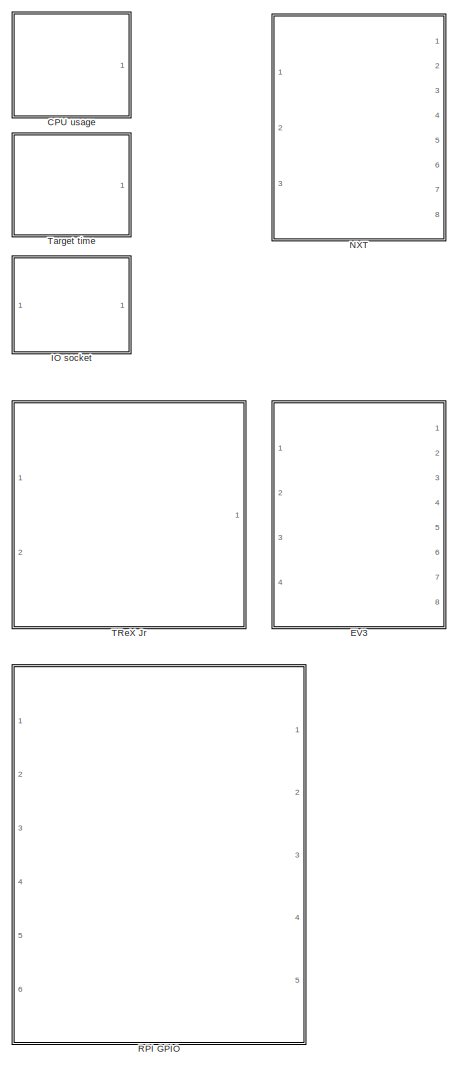
[diagram: root canvas - part 1/2, left side, full height]
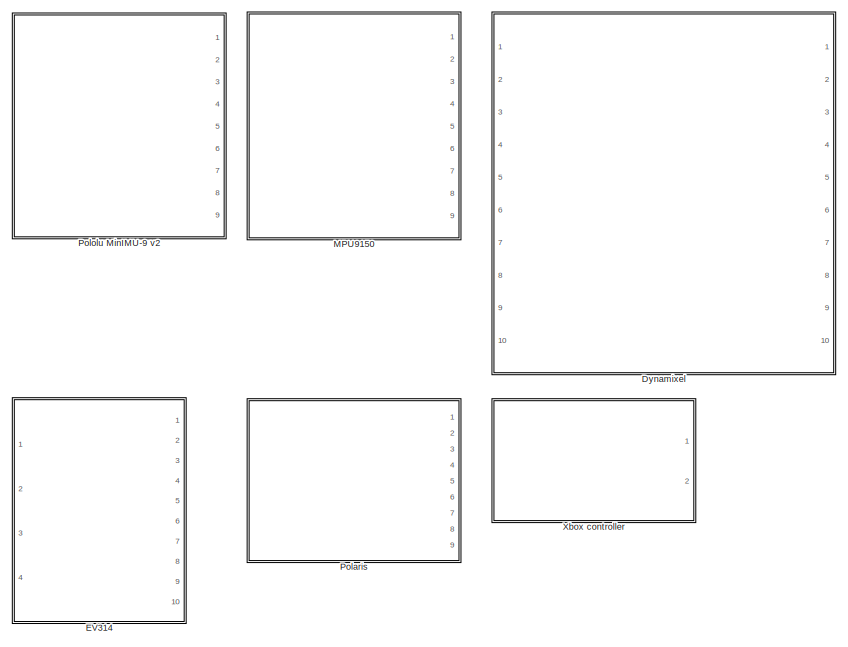
[diagram: root canvas - part 2/2, top right region]
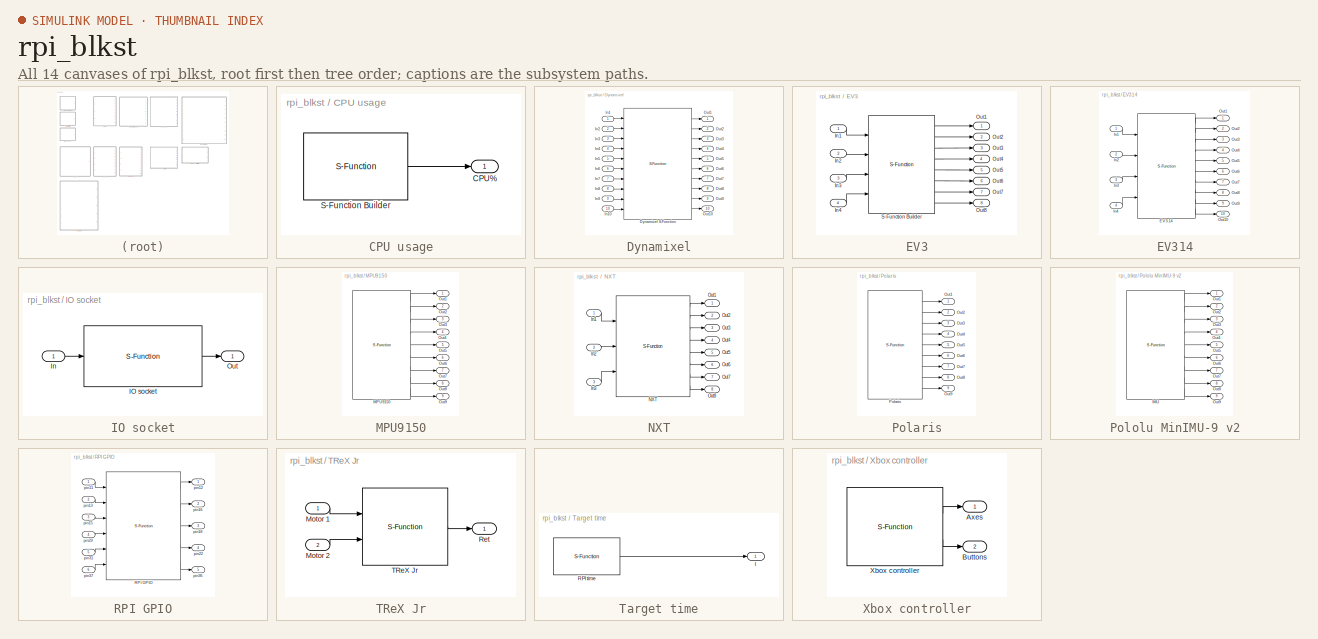
[diagram: thumbnail index - all 14 canvases of the model, root first then tree order]
MODEL rpi_blkst
KIND library
BLOCK [SubSystem] CPU usage
  FunctionWithSeparateData = off
  MaskDescription = Percentage of CPU usage on the target. To be safe, keep below 80%.
  MaskDisplay = image(imread('cpu_usage.jpg'))
  MaskEnableString = on
  MaskHelp = Time spent in the system computation with respect to the period duration.
  MaskHideContents = off
  MaskIconFrame = on
  MaskIconOpaque = on
  MaskIconRotate = none
  MaskIconUnits = autoscale
  MaskPortRotate = default
  MaskPromptString = Sampling interval (s)
  MaskStyleString = edit
  MaskToolTipString = on
  MaskTunableValueString = off
  MaskType = Target CPU usage
  MaskValueString = 0.01
  MaskVariables = rpi_mask_Ts=@1;
  MaskVisibilityString = on
  MinAlgLoopOccurrences = off
  Opaque = off
  Ports = [0, 1]
  PropExecContextOutsideSubsystem = off
  RTWSystemCode = Auto
  RequestExecContextInheritance = off
  SID = 84
BLOCK [Outport] CPU usage/CPU%
  IconDisplay = Port number
  SID = 86
BLOCK [S-Function] CPU usage/S-Function Builder
  EnableBusSupport = off
  FunctionName = rpi_sfun_cpu
  InitFcn = try, set_param(gcb,'FunctionName','rpi_sfun_cpu'), end
  MaskCapabilities = slmaskedcaps(gcbh)
  MaskDescription = The S-Function Builder block creates a wrapper C-MEX S-function from your supplied C code with multiple input ports, output ports, and a variable number of scalar, vector, or matrix parameters.  The input and output ports can propagate Simulink built-in data types, fixed-point datatypes, complex, frame, 1-D, and 2-D signals.  This block also supports discrete and continuous states of type real.  Y...<+108ch>  <repeated x13 — deduplicated; at blocks: S-Function Builder, Dynamixel S-Function, EV3.14, IO socket, MPU9150, NXT, Polaris, IMU, RPI GPIO, TReX Jr, RPI time, Xbox controller>
  MaskDisplay = plot(val(:,1),val(:,2)),disp(sys), port_label('output',1,'y0')
  MaskIconFrame = on
  MaskIconOpaque = on
  MaskIconRotate = none
  MaskIconUnits = normalized
  MaskInitialization = val = [[.9  0.75 0.75 1 1 .9 .9 1]',[1 1 0.75 0.75 .9 .9 1 .9]'];try , sys = get_param(gcb,'SfunBuilderFcnName');if isempty(sys), sys = get_param(gcb,'FunctionName'); end,catch, sys = get_param(gcb,'FunctionName'); end  <repeated x13 — deduplicated; at blocks: S-Function Builder, Dynamixel S-Function, EV3.14, IO socket, MPU9150, NXT, Polaris, IMU, RPI GPIO, TReX Jr, RPI time, Xbox controller>
  MaskPortRotate = default
  MaskType = S-Function Builder
  OpenFcn = sfunctionwizard(gcbh)
  Parameters = rpi_mask_Ts
  Ports = [0, 1]
  PreSaveFcn = try, set_param(gcb,'FunctionName','rpi_sfun_cpu'), end
  SFunctionModules = rpi_sfun_cpu_wrapper
  SID = 85
  WizardData = DataTag0
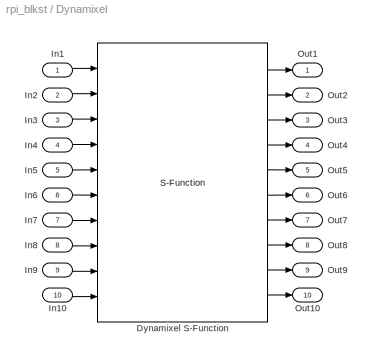
BLOCK [SubSystem] Dynamixel
  FunctionWithSeparateData = off
  MaskCallbackString = ||||||||||||||||||||||||||||||||||||||||
  MaskDescription = Control all Dynamixel actuators with Simulink coder.
  MaskDisplay = image(imread('dynamixel.jpg'))\nport_label('input',1,'u1')\nport_label('input',2,'u2')\nport_label('input',3,'u3')\nport_label('input',4,'u4')\nport_label('input',5,'u5')\nport_label('input',6,'u6')\nport_label('input',7,'u7')\nport_label('input',8,'u8')\nport_label('input',9,'u9')\nport_label('input',10,'u10')\nport_label('output',1,'y1')\nport_label('output',2,'y2')\nport_label('output',3,'y3')\...<+204ch>
  MaskEnableString = on,on,on,on,on,on,on,on,on,on,on,on,on,on,on,on,on,on,on,on,on,on,on,on,on,on,on,on,on,on,on,on,on,on,on,on,on,on,on,on,on
  MaskHelp = Sampling interval: should be greater than 5ms.\nPortname: 0-9:/dev/ttyUSB0-/dev/ttyUSB9, 10-19:/dev/ttyS0-/dev/ttyS9.\nBaudrate: the speed of the serial communication (ex: 57600).\nStartID: the ID of the first device that should be accessed.\nNBID: number of devices that should be addressed by this block (max 10).\nProtocol: version of the communication protocol (1 or 2).\nInput write address: reg...<+830ch>
  MaskHideContents = off
  MaskIconFrame = on
  MaskIconOpaque = on
  MaskIconRotate = none
  MaskIconUnits = autoscale
  MaskPortRotate = default
  MaskPromptString = Sampling interval (s)|Serial port number|Baud rate (bps)|ID of the first device|Number of devices|Protocol version|Input write address|Input write length|Output read address|Output read length|Output read sign|Address of instruction 1|Length of instruction 1|Data of instruction 1|Address of instruction 2|Length of instruction 2|Data of instruction 2|Address of instruction 3|Length of instruction 3...<+519ch>
  MaskStyleString = edit,edit,edit,edit,edit,edit,edit,edit,edit,edit,edit,edit,edit,edit,edit,edit,edit,edit,edit,edit,edit,edit,edit,edit,edit,edit,edit,edit,edit,edit,edit,edit,edit,edit,edit,edit,edit,edit,edit,edit,edit
  MaskTabNameString = General,General,General,General,General,General,I/O,I/O,I/O,I/O,I/O,Initialization,Initialization,Initialization,Initialization,Initialization,Initialization,Initialization,Initialization,Initialization,Initialization,Initialization,Initialization,Initialization,Initialization,Initialization,Initialization,Initialization,Initialization,Initialization,Initialization,Initialization,Initialization,In...<+81ch>
  MaskToolTipString = on,on,on,on,on,on,on,on,on,on,on,on,on,on,on,on,on,on,on,on,on,on,on,on,on,on,on,on,on,on,on,on,on,on,on,on,on,on,on,on,on
  MaskTunableValueString = off,off,off,off,off,off,off,off,off,off,off,off,off,off,off,off,off,off,off,off,off,off,off,off,off,off,off,off,off,off,off,off,off,off,off,off,off,off,off,off,off
  MaskType = Dynamixel actuator
  MaskValueString = 0.005|0|1000000|1|1|2|0|0|0|0|0|0|0|0|0|0|0|0|0|0|0|0|0|0|0|0|0|0|0|0|0|0|0|0|0|0|0|0|0|0|0
  MaskVariables = rpi_mask_Ts=@1;rpi_mask_portname=@2;rpi_mask_baudrate=@3;rpi_mask_startid=@4;rpi_mask_nbid=@5;rpi_mask_proto=@6;rpi_mask_write_addr=@7;rpi_mask_write_length=@8;rpi_mask_read_addr=@9;rpi_mask_read_length=@10;rpi_mask_read_sign=@11;rpi_mask_init1_addr=@12;rpi_mask_init1_length=@13;rpi_mask_init1_data=@14;rpi_mask_init2_addr=@15;rpi_mask_init2_length=@16;rpi_mask_init2_data=@17;rpi_mask_init3_addr=@1...<+570ch>
  MaskVisibilityString = on,on,on,on,on,on,on,on,on,on,on,on,on,on,on,on,on,on,on,on,on,on,on,on,on,on,on,on,on,on,on,on,on,on,on,on,on,on,on,on,on
  MinAlgLoopOccurrences = off
  Opaque = off
  Ports = [10, 10]
  PropExecContextOutsideSubsystem = off
  RTWSystemCode = Auto
  RequestExecContextInheritance = off
  SID = 117
BLOCK [S-Function] Dynamixel/Dynamixel S-Function
  EnableBusSupport = off
  FunctionName = rpi_sfun_dxl
  InitFcn = try, set_param(gcb,'FunctionName','rpi_sfun_dxl'), end
  MaskCapabilities = slmaskedcaps(gcbh)
  MaskDisplay = plot(val(:,1),val(:,2)),disp(sys), port_label('input',1,'u1'), port_label('input',2,'u2'), port_label('input',3,'u3'), port_label('input',4,'u4'), port_label('input',5,'u5'), port_label('input',6,'u6'), port_label('input',7,'u7'), port_label('input',8,'u8'), port_label('input',9,'u9'), port_label('input',10,'u10'), port_label('output',1,'y1'), port_label('output',2,'y2'), port_label('output',3,'y3...<+207ch>
  MaskIconFrame = on
  MaskIconOpaque = on
  MaskIconRotate = none
  MaskIconUnits = normalized
  MaskPortRotate = default
  MaskType = S-Function Builder
  OpenFcn = sfunctionwizard(gcbh)
  Parameters = rpi_mask_Ts,uint8(rpi_mask_portname),uint32(rpi_mask_baudrate),uint8(rpi_mask_startid),uint8(rpi_mask_nbid),uint8(rpi_mask_proto),uint16(rpi_mask_write_addr),uint8(rpi_mask_write_length),uint16(rpi_mask_read_addr),uint8(rpi_mask_read_length),uint8(rpi_mask_read_sign),uint16(rpi_mask_init1_addr),uint8(rpi_mask_init1_length),rpi_mask_init1_data,uint16(rpi_mask_init2_addr),uint8(rpi_mask_init2_length...<+637ch>
  Ports = [10, 10]
  PreSaveFcn = try, set_param(gcb,'FunctionName','rpi_sfun_dxl'), end
  SFunctionModules = rpi_sfun_dxl_wrapper
  SID = 128
  WizardData = DataTag1
BLOCK [Inport] Dynamixel/In1
  IconDisplay = Port number
  SID = 118
BLOCK [Inport] Dynamixel/In10
  IconDisplay = Port number
  Port = 10
  SID = 127
BLOCK [Inport] Dynamixel/In2
  IconDisplay = Port number
  Port = 2
  SID = 119
BLOCK [Inport] Dynamixel/In3
  IconDisplay = Port number
  Port = 3
  SID = 120
BLOCK [Inport] Dynamixel/In4
  IconDisplay = Port number
  Port = 4
  SID = 121
BLOCK [Inport] Dynamixel/In5
  IconDisplay = Port number
  Port = 5
  SID = 122
BLOCK [Inport] Dynamixel/In6
  IconDisplay = Port number
  Port = 6
  SID = 123
BLOCK [Inport] Dynamixel/In7
  IconDisplay = Port number
  Port = 7
  SID = 124
BLOCK [Inport] Dynamixel/In8
  IconDisplay = Port number
  Port = 8
  SID = 125
BLOCK [Inport] Dynamixel/In9
  IconDisplay = Port number
  Port = 9
  SID = 126
BLOCK [Outport] Dynamixel/Out1
  IconDisplay = Port number
  SID = 129
BLOCK [Outport] Dynamixel/Out10
  IconDisplay = Port number
  Port = 10
  SID = 138
BLOCK [Outport] Dynamixel/Out2
  IconDisplay = Port number
  Port = 2
  SID = 130
BLOCK [Outport] Dynamixel/Out3
  IconDisplay = Port number
  Port = 3
  SID = 131
BLOCK [Outport] Dynamixel/Out4
  IconDisplay = Port number
  Port = 4
  SID = 132
BLOCK [Outport] Dynamixel/Out5
  IconDisplay = Port number
  Port = 5
  SID = 133
BLOCK [Outport] Dynamixel/Out6
  IconDisplay = Port number
  Port = 6
  SID = 134
BLOCK [Outport] Dynamixel/Out7
  IconDisplay = Port number
  Port = 7
  SID = 135
BLOCK [Outport] Dynamixel/Out8
  IconDisplay = Port number
  Port = 8
  SID = 136
BLOCK [Outport] Dynamixel/Out9
  IconDisplay = Port number
  Port = 9
  SID = 137
BLOCK [SubSystem] EV3
  FunctionWithSeparateData = off
  MaskDescription = LEGO EV3 communication block.
  MaskDisplay = image(imread('ev3.jpg'))\nport_label('input',1,'A')\nport_label('input',2,'B')\nport_label('input',3,'C')\nport_label('input',4,'D')\nport_label('output',1,'A')\nport_label('output',2,'B')\nport_label('output',3,'C')\nport_label('output',4,'D')\nport_label('output',5,'1')\nport_label('output',6,'2')\nport_label('output',7,'3')\nport_label('output',8,'4')
  MaskEnableString = on
  MaskHelp = Communicates through USB with the Lego EV3 virtual machine.
  MaskHideContents = off
  MaskIconFrame = on
  MaskIconOpaque = on
  MaskIconRotate = none
  MaskIconUnits = normalized
  MaskPortRotate = default
  MaskPromptString = Sampling interval (s)
  MaskStyleString = edit
  MaskToolTipString = on
  MaskTunableValueString = off
  MaskType = LEGO EV3
  MaskValueString = 0.01
  MaskVariables = rpi_mask_Ts=@1;
  MaskVisibilityString = on
  MinAlgLoopOccurrences = off
  Opaque = off
  Ports = [4, 8]
  PropExecContextOutsideSubsystem = off
  RTWSystemCode = Auto
  RequestExecContextInheritance = off
  SID = 8
BLOCK [Inport] EV3/In1
  IconDisplay = Port number
  SID = 9
BLOCK [Inport] EV3/In2
  IconDisplay = Port number
  Port = 2
  SID = 10
BLOCK [Inport] EV3/In3
  IconDisplay = Port number
  Port = 3
  SID = 11
BLOCK [Inport] EV3/In4
  IconDisplay = Port number
  Port = 4
  SID = 12
BLOCK [Outport] EV3/Out1
  IconDisplay = Port number
  SID = 18
BLOCK [Outport] EV3/Out2
  IconDisplay = Port number
  Port = 2
  SID = 19
BLOCK [Outport] EV3/Out3
  IconDisplay = Port number
  Port = 3
  SID = 20
BLOCK [Outport] EV3/Out4
  IconDisplay = Port number
  Port = 4
  SID = 21
BLOCK [Outport] EV3/Out5
  IconDisplay = Port number
  Port = 5
  SID = 22
BLOCK [Outport] EV3/Out6
  IconDisplay = Port number
  Port = 6
  SID = 23
BLOCK [Outport] EV3/Out7
  IconDisplay = Port number
  Port = 7
  SID = 24
BLOCK [Outport] EV3/Out8
  IconDisplay = Port number
  Port = 8
  SID = 25
BLOCK [S-Function] EV3/S-Function Builder
  EnableBusSupport = off
  FunctionName = rpi_sfun_ev3
  InitFcn = try, set_param(gcb,'FunctionName','rpi_sfun_ev3'), end
  MaskCapabilities = slmaskedcaps(gcbh)
  MaskDisplay = plot(val(:,1),val(:,2)),disp(sys), port_label('input',1,'u_A'), port_label('input',2,'u_B'), port_label('input',3,'u_C'), port_label('input',4,'u_D'), port_label('output',1,'y_A'), port_label('output',2,'y_B'), port_label('output',3,'y_C'), port_label('output',4,'y_D'), port_label('output',5,'y_1'), port_label('output',6,'y_2'), port_label('output',7,'y_3'), port_label('output',8,'y_4')
  MaskIconFrame = on
  MaskIconOpaque = on
  MaskIconRotate = none
  MaskIconUnits = normalized
  MaskPortRotate = default
  MaskType = S-Function Builder
  OpenFcn = sfunctionwizard(gcbh)
  Parameters = rpi_mask_Ts
  Ports = [4, 8]
  PreSaveFcn = try, set_param(gcb,'FunctionName','rpi_sfun_ev3'), end
  SFunctionModules = rpi_sfun_ev3_wrapper
  SID = 13
  WizardData = DataTag2
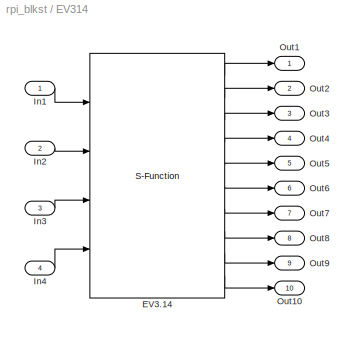
BLOCK [SubSystem] EV314
  FunctionWithSeparateData = off
  MaskCallbackString = |
  MaskDescription = Controlling an EV3 running the EV3.14 firmware through USB.\n\n
  MaskDisplay = image(imread('ev3.14.jpg'))\nport_label('input',1,'UA')\nport_label('input',2,'UB')\nport_label('input',3,'UC')\nport_label('input',4,'UD')\nport_label('output',1,'EA')\nport_label('output',2,'EB')\nport_label('output',3,'EC')\nport_label('output',4,'ED')\nport_label('output',5,'S1')\nport_label('output',6,'S2')\nport_label('output',7,'S3')\nport_label('output',8,'S4')\nport_label('output',9,'IBAT...<+34ch>
  MaskEnableString = on,on
  MaskHelp = UA, UB, UC, UD are the motor voltage control signals ranging from -10000 to +10000.\n\nEA, EB, EC, ED are the encoder values. EV3.14 counts in quad-precision. Thus there is 720 increments per turn. \n\nS1, S2, S3, S4 are the voltage measured at the sensor inputs. Only analog sensors are supported.\n\nIBAT gives the battery current in mA.\n\nVBAT gives the battery voltage in mV. Note that the brick...<+259ch>
  MaskHideContents = off
  MaskIconFrame = on
  MaskIconOpaque = on
  MaskIconRotate = none
  MaskIconUnits = autoscale
  MaskPortRotate = default
  MaskPromptString = EV3.14 block ID|Sampling interval (s)
  MaskStyleString = edit,edit
  MaskToolTipString = on,on
  MaskTunableValueString = off,off
  MaskType = EV3.14 interface
  MaskValueString = 0|0.01
  MaskVariables = rpi_mask_ID=@1;rpi_mask_Ts=@2;
  MaskVisibilityString = on,on
  MinAlgLoopOccurrences = off
  Opaque = off
  Ports = [4, 10]
  PropExecContextOutsideSubsystem = off
  RTWSystemCode = Auto
  RequestExecContextInheritance = off
  SID = 87
BLOCK [S-Function] EV314/EV3.14
  EnableBusSupport = off
  FunctionName = rpi_sfun_ev314
  InitFcn = try, set_param(gcb,'FunctionName','rpi_sfun_ev314'), end
  MaskCapabilities = slmaskedcaps(gcbh)
  MaskDisplay = plot(val(:,1),val(:,2)),disp(sys), port_label('input',1,'UA'), port_label('input',2,'UB'), port_label('input',3,'UC'), port_label('input',4,'UD'), port_label('output',1,'EA'), port_label('output',2,'EB'), port_label('output',3,'EC'), port_label('output',4,'ED'), port_label('output',5,'S1'), port_label('output',6,'S2'), port_label('output',7,'S3'), port_label('output',8,'S4'), port_label('output',9...<+40ch>
  MaskIconFrame = on
  MaskIconOpaque = on
  MaskIconRotate = none
  MaskIconUnits = normalized
  MaskPortRotate = default
  MaskType = S-Function Builder
  OpenFcn = sfunctionwizard(gcbh)
  Parameters = rpi_mask_Ts,uint8(rpi_mask_ID)
  Ports = [4, 10]
  PreSaveFcn = try, set_param(gcb,'FunctionName','rpi_sfun_ev314'), end
  SFunctionModules = rpi_sfun_ev314_wrapper
  SID = 92
  WizardData = DataTag3
BLOCK [Inport] EV314/In1
  IconDisplay = Port number
  SID = 88
BLOCK [Inport] EV314/In2
  IconDisplay = Port number
  Port = 2
  SID = 89
BLOCK [Inport] EV314/In3
  IconDisplay = Port number
  Port = 3
  SID = 90
BLOCK [Inport] EV314/In4
  IconDisplay = Port number
  Port = 4
  SID = 91
BLOCK [Outport] EV314/Out1
  IconDisplay = Port number
  SID = 93
BLOCK [Outport] EV314/Out10
  IconDisplay = Port number
  Port = 10
  SID = 102
BLOCK [Outport] EV314/Out2
  IconDisplay = Port number
  Port = 2
  SID = 94
BLOCK [Outport] EV314/Out3
  IconDisplay = Port number
  Port = 3
  SID = 95
BLOCK [Outport] EV314/Out4
  IconDisplay = Port number
  Port = 4
  SID = 96
BLOCK [Outport] EV314/Out5
  IconDisplay = Port number
  Port = 5
  SID = 97
BLOCK [Outport] EV314/Out6
  IconDisplay = Port number
  Port = 6
  SID = 98
BLOCK [Outport] EV314/Out7
  IconDisplay = Port number
  Port = 7
  SID = 99
BLOCK [Outport] EV314/Out8
  IconDisplay = Port number
  Port = 8
  SID = 100
BLOCK [Outport] EV314/Out9
  IconDisplay = Port number
  Port = 9
  SID = 101
BLOCK [SubSystem] IO socket
  FunctionWithSeparateData = off
  MaskCallbackString = ||||
  MaskDescription = Input / Output socket
  MaskDisplay = image(imread('socket2.jpg'))
  MaskEnableString = on,on,on,on,on
  MaskHelp = Enables a bidirectional communication with other machines using UDP sockets.\n\nIP adress of the server is IP1.IP2.IP3.IP4.\n\nMultiple IO socket blocks (max 10) can be used simultaneously with different IP addresses.\n\nAn example of server code can be found in \"res/rpit_socket_server.c\".\n\nMinimum sampling period is 1ms.
  MaskHideContents = off
  MaskIconFrame = on
  MaskIconOpaque = on
  MaskIconRotate = none
  MaskIconUnits = autoscale
  MaskPortRotate = default
  MaskPromptString = Sampling interval (s)|IP1|IP2|IP3|IP4
  MaskStyleString = edit,edit,edit,edit,edit
  MaskToolTipString = on,on,on,on,on
  MaskTunableValueString = off,off,off,off,off
  MaskType = IO socket
  MaskValueString = 0.01|127|0|0|1
  MaskVariables = rpi_mask_Ts=@1;rpi_mask_ip1=@2;rpi_mask_ip2=@3;rpi_mask_ip3=@4;rpi_mask_ip4=@5;
  MaskVisibilityString = on,on,on,on,on
  MinAlgLoopOccurrences = off
  Opaque = off
  Ports = [1, 1]
  PropExecContextOutsideSubsystem = off
  RTWSystemCode = Auto
  RequestExecContextInheritance = off
  SID = 143
BLOCK [S-Function] IO socket/IO socket
  EnableBusSupport = off
  FunctionName = rpi_sfun_iosocket
  InitFcn = try, set_param(gcb,'FunctionName','rpi_sfun_iosocket'), end
  MaskCapabilities = slmaskedcaps(gcbh)
  MaskDisplay = plot(val(:,1),val(:,2)),disp(sys), port_label('input',1,'u0'), port_label('output',1,'y0')
  MaskIconFrame = on
  MaskIconOpaque = on
  MaskIconRotate = none
  MaskIconUnits = normalized
  MaskPortRotate = default
  MaskType = S-Function Builder
  OpenFcn = sfunctionwizard(gcbh)
  Parameters = rpi_mask_Ts,uint8(rpi_mask_ip1),uint8(rpi_mask_ip2),uint8(rpi_mask_ip3),uint8(rpi_mask_ip4)
  Ports = [1, 1]
  PreSaveFcn = try, set_param(gcb,'FunctionName','rpi_sfun_iosocket'), end
  SFunctionModules = rpi_sfun_iosocket_wrapper
  SID = 145
  WizardData = DataTag4
BLOCK [Inport] IO socket/In
  IconDisplay = Port number
  SID = 144
BLOCK [Outport] IO socket/Out
  IconDisplay = Port number
  SID = 146
BLOCK [SubSystem] MPU9150
  FunctionWithSeparateData = off
  MaskDescription = Inertial Measurement Unit based on Invensense's MPU 9150 chip.
  MaskDisplay = image(imread('9150.jpg'))\nport_label('output',1,'ax')\nport_label('output',2,'ay')\nport_label('output',3,'az')\nport_label('output',4,'gx')\nport_label('output',5,'gy')\nport_label('output',6,'gz')\nport_label('output',7,'mx')\nport_label('output',8,'my')\nport_label('output',9,'mz')
  MaskEnableString = on
  MaskHelp = Interface to the DroTek (www.drotek.fr), Accelerometer, and Compass board.\nIt should also work with the MPU9150 SparkFun board.\nIt is connected to the RPI through the I2C port.\nThe accelerometer and the gyro are refreshed internally at 1kHz. \nThe range of the accelerometer is +/-2g.\nThe range of the gyro is +/-1000deg/s.\nThe magnetometer is refreshed every 4 samples. It is internally refresh...<+12ch>
  MaskHideContents = off
  MaskIconFrame = on
  MaskIconOpaque = on
  MaskIconRotate = none
  MaskIconUnits = normalized
  MaskPortRotate = default
  MaskPromptString = Sampling interval (s)
  MaskStyleString = edit
  MaskToolTipString = on
  MaskTunableValueString = off
  MaskType = MPU9150 IMU
  MaskValueString = 0.01
  MaskVariables = rpi_mask_Ts=@1;
  MaskVisibilityString = on
  MinAlgLoopOccurrences = off
  Opaque = off
  Ports = [0, 9]
  PropExecContextOutsideSubsystem = off
  RTWSystemCode = Auto
  RequestExecContextInheritance = off
  SID = 49
BLOCK [S-Function] MPU9150/MPU9150
  EnableBusSupport = off
  FunctionName = rpi_sfun_mpu9150
  InitFcn = try, set_param(gcb,'FunctionName','rpi_sfun_mpu9150'), end
  MaskCapabilities = slmaskedcaps(gcbh)
  MaskDisplay = plot(val(:,1),val(:,2)),disp(sys), port_label('output',1,'ax'), port_label('output',2,'ay'), port_label('output',3,'az'), port_label('output',4,'gx'), port_label('output',5,'gy'), port_label('output',6,'gz'), port_label('output',7,'mx'), port_label('output',8,'my'), port_label('output',9,'mz')
  MaskIconFrame = on
  MaskIconOpaque = on
  MaskIconRotate = none
  MaskIconUnits = normalized
  MaskPortRotate = default
  MaskType = S-Function Builder
  OpenFcn = sfunctionwizard(gcbh)
  Parameters = rpi_mask_Ts
  Ports = [0, 9]
  PreSaveFcn = try, set_param(gcb,'FunctionName','rpi_sfun_mpu9150'), end
  SFunctionModules = rpi_sfun_mpu9150_wrapper
  SID = 50
  WizardData = DataTag5
BLOCK [Outport] MPU9150/Out1
  IconDisplay = Port number
  SID = 51
BLOCK [Outport] MPU9150/Out2
  IconDisplay = Port number
  Port = 2
  SID = 52
BLOCK [Outport] MPU9150/Out3
  IconDisplay = Port number
  Port = 3
  SID = 53
BLOCK [Outport] MPU9150/Out4
  IconDisplay = Port number
  Port = 4
  SID = 54
BLOCK [Outport] MPU9150/Out5
  IconDisplay = Port number
  Port = 5
  SID = 55
BLOCK [Outport] MPU9150/Out6
  IconDisplay = Port number
  Port = 6
  SID = 56
BLOCK [Outport] MPU9150/Out7
  IconDisplay = Port number
  Port = 7
  SID = 57
BLOCK [Outport] MPU9150/Out8
  IconDisplay = Port number
  Port = 8
  SID = 58
BLOCK [Outport] MPU9150/Out9
  IconDisplay = Port number
  Port = 9
  SID = 59
BLOCK [SubSystem] NXT
  FunctionWithSeparateData = off
  MaskCallbackString = |
  MaskDescription = LEGO NXT communication block.
  MaskDisplay = image(imread('nxt.jpg'))\nport_label('input',1,'A')\nport_label('input',2,'B')\nport_label('input',3,'C')\nport_label('output',1,'A')\nport_label('output',2,'B')\nport_label('output',3,'C')\nport_label('output',4,'1')\nport_label('output',5,'2')\nport_label('output',6,'3')\nport_label('output',7,'4')\nport_label('output',8,'BAT')
  MaskEnableString = on,on
  MaskHelp = Communicates through USB with the Lego NXT driver.\nThe driver must be launched on the NXT.\nDrivers are available in the \"res\" directory.\nOne of these NXTOSEK \".rxe\" files must be downloaded to the NXT.\nThe suffix of the filename defines the id of the NXT.\nThe round-trip exchange duration between the RPI and the NXT is approx. 1ms.
  MaskHideContents = off
  MaskIconFrame = on
  MaskIconOpaque = on
  MaskIconRotate = none
  MaskIconUnits = normalized
  MaskPortRotate = default
  MaskPromptString = Sampling interval (s)|NXT id
  MaskStyleString = edit,edit
  MaskToolTipString = on,on
  MaskTunableValueString = off,off
  MaskType = LEGO NXT
  MaskValueString = 0.01|1
  MaskVariables = rpi_mask_Ts=@1;rpi_mask_id=@2;
  MaskVisibilityString = on,on
  MinAlgLoopOccurrences = off
  Opaque = off
  Ports = [3, 8]
  PropExecContextOutsideSubsystem = off
  RTWSystemCode = Auto
  RequestExecContextInheritance = off
  SID = 60
BLOCK [Inport] NXT/In1
  IconDisplay = Port number
  SID = 61
BLOCK [Inport] NXT/In2
  IconDisplay = Port number
  Port = 2
  SID = 62
BLOCK [Inport] NXT/In3
  IconDisplay = Port number
  Port = 3
  SID = 63
BLOCK [S-Function] NXT/NXT
  EnableBusSupport = off
  FunctionName = rpi_sfun_nxt
  InitFcn = try, set_param(gcb,'FunctionName','rpi_sfun_nxt'), end
  MaskCapabilities = slmaskedcaps(gcbh)
  MaskDisplay = plot(val(:,1),val(:,2)),disp(sys), port_label('input',1,'u_A'), port_label('input',2,'u_B'), port_label('input',3,'u_C'), port_label('output',1,'y_A'), port_label('output',2,'y_B'), port_label('output',3,'y_C'), port_label('output',4,'y_1'), port_label('output',5,'y_2'), port_label('output',6,'y_3'), port_label('output',7,'y_4'), port_label('output',8,'bat')
  MaskIconFrame = on
  MaskIconOpaque = on
  MaskIconRotate = none
  MaskIconUnits = normalized
  MaskPortRotate = default
  MaskType = S-Function Builder
  OpenFcn = sfunctionwizard(gcbh)
  Parameters = rpi_mask_Ts,uint32(rpi_mask_id)
  Ports = [3, 8]
  PreSaveFcn = try, set_param(gcb,'FunctionName','rpi_sfun_nxt'), end
  SFunctionModules = rpi_sfun_nxt_wrapper
  SID = 64
  WizardData = DataTag6
BLOCK [Outport] NXT/Out1
  IconDisplay = Port number
  SID = 65
BLOCK [Outport] NXT/Out2
  IconDisplay = Port number
  Port = 2
  SID = 66
BLOCK [Outport] NXT/Out3
  IconDisplay = Port number
  Port = 3
  SID = 67
BLOCK [Outport] NXT/Out4
  IconDisplay = Port number
  Port = 4
  SID = 68
BLOCK [Outport] NXT/Out5
  IconDisplay = Port number
  Port = 5
  SID = 69
BLOCK [Outport] NXT/Out6
  IconDisplay = Port number
  Port = 6
  SID = 70
BLOCK [Outport] NXT/Out7
  IconDisplay = Port number
  Port = 7
  SID = 71
BLOCK [Outport] NXT/Out8
  IconDisplay = Port number
  Port = 8
  SID = 72
BLOCK [SubSystem] Polaris
  FunctionWithSeparateData = off
  MaskDescription = Interface for the Polaris system from NDI.\nCompatible with the original model.\nNewer VICRA and SPECTRA are not compatible.\n
  MaskDisplay = image(imread('polaris.jpg'))\nport_label( 'output', 1, 'x' )\nport_label( 'output', 2, 'y' )\nport_label( 'output', 3, 'z' )\nport_label( 'output', 4, 'q0' )\nport_label( 'output', 5, 'qx' )\nport_label( 'output', 6, 'qy' )\nport_label( 'output', 7, 'qz' )\nport_label( 'output', 8, 'state' )\nport_label( 'output', 9, 'frame' )
  MaskEnableString = on
  MaskHelp = The Polaris schould be connected by a serial link to the target.\nThe default serial port is /dev/ttyUSB0. It can be changed in \"polaris.h\".\n\nThe rom file should be named \"polaris.rom\" and put into the \"blocks\" directory.\n\nPolaris position data are internally refreshed at 60Hz.\nThe target reads asynchronously the position.\nSo, if your discrete sampling interval is less than 16ms, expec...<+67ch>
  MaskHideContents = off
  MaskIconFrame = on
  MaskIconOpaque = on
  MaskIconRotate = none
  MaskIconUnits = autoscale
  MaskPortRotate = default
  MaskPromptString = Sampling interval (s)
  MaskStyleString = edit
  MaskToolTipString = on
  MaskTunableValueString = off
  MaskType = NDI Polaris
  MaskValueString = 0.01
  MaskVariables = rpi_mask_Ts=@1;
  MaskVisibilityString = on
  MinAlgLoopOccurrences = off
  Opaque = off
  Ports = [0, 9]
  PropExecContextOutsideSubsystem = off
  RTWSystemCode = Auto
  RequestExecContextInheritance = off
  SID = 103
BLOCK [Outport] Polaris/Out1
  IconDisplay = Port number
  SID = 105
BLOCK [Outport] Polaris/Out2
  IconDisplay = Port number
  Port = 2
  SID = 106
BLOCK [Outport] Polaris/Out3
  IconDisplay = Port number
  Port = 3
  SID = 107
BLOCK [Outport] Polaris/Out4
  IconDisplay = Port number
  Port = 4
  SID = 108
BLOCK [Outport] Polaris/Out5
  IconDisplay = Port number
  Port = 5
  SID = 109
BLOCK [Outport] Polaris/Out6
  IconDisplay = Port number
  Port = 6
  SID = 110
BLOCK [Outport] Polaris/Out7
  IconDisplay = Port number
  Port = 7
  SID = 111
BLOCK [Outport] Polaris/Out8
  IconDisplay = Port number
  Port = 8
  SID = 112
BLOCK [Outport] Polaris/Out9
  IconDisplay = Port number
  Port = 9
  SID = 113
BLOCK [S-Function] Polaris/Polaris
  EnableBusSupport = off
  FunctionName = rpi_sfun_polaris
  InitFcn = try, set_param(gcb,'FunctionName','rpi_sfun_polaris'), end
  MaskCapabilities = slmaskedcaps(gcbh)
  MaskDisplay = plot(val(:,1),val(:,2)),disp(sys), port_label('output',1,'x'), port_label('output',2,'y'), port_label('output',3,'z'), port_label('output',4,'q0'), port_label('output',5,'qx'), port_label('output',6,'qy'), port_label('output',7,'qz'), port_label('output',8,'state'), port_label('output',9,'frame')
  MaskIconFrame = on
  MaskIconOpaque = on
  MaskIconRotate = none
  MaskIconUnits = normalized
  MaskPortRotate = default
  MaskType = S-Function Builder
  OpenFcn = sfunctionwizard(gcbh)
  Parameters = rpi_mask_Ts
  Ports = [0, 9]
  PreSaveFcn = try, set_param(gcb,'FunctionName','rpi_sfun_polaris'), end
  SFunctionModules = rpi_sfun_polaris_wrapper
  SID = 104
  WizardData = DataTag7
BLOCK [SubSystem] Pololu MinIMU-9 v2
  FunctionWithSeparateData = off
  MaskDescription = Inertiel Measurement Unit
  MaskDisplay = image(imread('pololu_imu.jpg'))\nport_label('output',1,'ax')\nport_label('output',2,'ay')\nport_label('output',3,'az')\nport_label('output',4,'gx')\nport_label('output',5,'gy')\nport_label('output',6,'gz')\nport_label('output',7,'mx')\nport_label('output',8,'my')\nport_label('output',9,'mz')
  MaskEnableString = on
  MaskHelp = Interface to the Pololu MinIMU-9 v2 Gyro, Accelerometer, and Compass board.\nIt is connected to the RPI through the I2C port.\nThe accelerometer is refreshed internally at 400Hz. Its range is +/-2g.\nThe gyro is refreshed at 760Hz, with a bandpass filter from 0.09Hz to 100Hz. Its range is +/-500deg/s.\nThe magnetometer is refreshed at 220Hz. Its range is +/-1.3 Gauss.
  MaskHideContents = off
  MaskIconFrame = on
  MaskIconOpaque = on
  MaskIconRotate = none
  MaskIconUnits = normalized
  MaskPortRotate = default
  MaskPromptString = Sampling interval (s)
  MaskStyleString = edit
  MaskToolTipString = on
  MaskTunableValueString = off
  MaskType = IMU
  MaskValueString = 0.01
  MaskVariables = rpi_mask_Ts=@1;
  MaskVisibilityString = on
  MinAlgLoopOccurrences = off
  Opaque = off
  Ports = [0, 9]
  PropExecContextOutsideSubsystem = off
  RTWSystemCode = Auto
  RequestExecContextInheritance = off
  SID = 26
BLOCK [S-Function] Pololu MinIMU-9 v2/IMU
  EnableBusSupport = off
  FunctionName = rpi_sfun_imu
  InitFcn = try, set_param(gcb,'FunctionName','rpi_sfun_imu'), end
  MaskCapabilities = slmaskedcaps(gcbh)
  MaskDisplay = plot(val(:,1),val(:,2)),disp(sys), port_label('output',1,'ax'), port_label('output',2,'ay'), port_label('output',3,'az'), port_label('output',4,'gx'), port_label('output',5,'gy'), port_label('output',6,'gz'), port_label('output',7,'mx'), port_label('output',8,'my'), port_label('output',9,'mz')
  MaskIconFrame = on
  MaskIconOpaque = on
  MaskIconRotate = none
  MaskIconUnits = normalized
  MaskPortRotate = default
  MaskType = S-Function Builder
  OpenFcn = sfunctionwizard(gcbh)
  Parameters = rpi_mask_Ts
  Ports = [0, 9]
  PreSaveFcn = try, set_param(gcb,'FunctionName','rpi_sfun_imu'), end
  SFunctionModules = rpi_sfun_imu_wrapper
  SID = 27
  WizardData = DataTag8
BLOCK [Outport] Pololu MinIMU-9 v2/Out1
  IconDisplay = Port number
  SID = 28
BLOCK [Outport] Pololu MinIMU-9 v2/Out2
  IconDisplay = Port number
  Port = 2
  SID = 29
BLOCK [Outport] Pololu MinIMU-9 v2/Out3
  IconDisplay = Port number
  Port = 3
  SID = 30
BLOCK [Outport] Pololu MinIMU-9 v2/Out4
  IconDisplay = Port number
  Port = 4
  SID = 31
BLOCK [Outport] Pololu MinIMU-9 v2/Out5
  IconDisplay = Port number
  Port = 5
  SID = 32
BLOCK [Outport] Pololu MinIMU-9 v2/Out6
  IconDisplay = Port number
  Port = 6
  SID = 33
BLOCK [Outport] Pololu MinIMU-9 v2/Out7
  IconDisplay = Port number
  Port = 7
  SID = 34
BLOCK [Outport] Pololu MinIMU-9 v2/Out8
  IconDisplay = Port number
  Port = 8
  SID = 35
BLOCK [Outport] Pololu MinIMU-9 v2/Out9
  IconDisplay = Port number
  Port = 9
  SID = 36
BLOCK [SubSystem] RPI GPIO
  FunctionWithSeparateData = off
  MaskDescription = Input/ouptut on Raspberry Pi GPIO
  MaskDisplay = image(imread('rgpio.jpg'))\nport_label('input',1,'11')\nport_label('input',2,'13')\nport_label('input',3,'15')\nport_label('input',4,'29')\nport_label('input',5,'31')\nport_label('input',6,'37')\nport_label('output',1,'12')\nport_label('output',2,'16')\nport_label('output',3,'18')\nport_label('output',4,'22')\nport_label('output',5,'36')
  MaskEnableString = on
  MaskHelp = Inputs:\n  0 = low voltage\n  1 = high voltage\nOutputs:\n  0 = low voltage\n  1 = high voltage\n  -1 = unable to open sysfs device\n  -2 = unable to read sysfs device\nMax sampling interval: 0.001s
  MaskHideContents = off
  MaskIconFrame = on
  MaskIconOpaque = on
  MaskIconRotate = none
  MaskIconUnits = autoscale
  MaskPortRotate = default
  MaskPromptString = Sampling interval (s)
  MaskStyleString = edit
  MaskToolTipString = on
  MaskTunableValueString = off
  MaskType = RPI GPIO
  MaskValueString = 0.01
  MaskVariables = rpi_mask_Ts=@1;
  MaskVisibilityString = on
  MinAlgLoopOccurrences = off
  Opaque = off
  Ports = [6, 5]
  PropExecContextOutsideSubsystem = off
  RTWSystemCode = Auto
  RequestExecContextInheritance = off
  SID = 169
BLOCK [S-Function] RPI GPIO/RPI GPIO
  CopyFcn = set_param(gcbh,'LinkStatus','none')
  EnableBusSupport = off
  FunctionName = rpi_sfun_rgpio
  InitFcn = try, set_param(gcb,'FunctionName','rpi_sfun_rgpio'), end
  MaskCapabilities = slmaskedcaps(gcbh)
  MaskDisplay = plot(val(:,1),val(:,2)),disp(sys), port_label('input',1,'pin11'), port_label('input',2,'pin13'), port_label('input',3,'pin15'), port_label('input',4,'pin29'), port_label('input',5,'pin31'), port_label('input',6,'pin37'), port_label('output',1,'pin12'), port_label('output',2,'pin16'), port_label('output',3,'pin18'), port_label('output',4,'pin22'), port_label('output',5,'pin36')
  MaskIconFrame = on
  MaskIconOpaque = on
  MaskIconRotate = none
  MaskIconUnits = normalized
  MaskPortRotate = default
  MaskType = S-Function Builder
  OpenFcn = sfunctionwizard(gcbh)
  Parameters = rpi_mask_Ts
  Ports = [6, 5]
  PreSaveFcn = try, set_param(gcb,'FunctionName','rpi_sfun_rgpio'), end
  SFunctionModules = rpi_sfun_rgpio_wrapper
  SID = 176
  WizardData = DataTag9
BLOCK [Inport] RPI GPIO/pin11
  IconDisplay = Port number
  SID = 170
BLOCK [Outport] RPI GPIO/pin12
  IconDisplay = Port number
  SID = 177
BLOCK [Inport] RPI GPIO/pin13
  IconDisplay = Port number
  Port = 2
  SID = 171
BLOCK [Inport] RPI GPIO/pin15
  IconDisplay = Port number
  Port = 3
  SID = 172
BLOCK [Outport] RPI GPIO/pin16
  IconDisplay = Port number
  Port = 2
  SID = 178
BLOCK [Outport] RPI GPIO/pin18
  IconDisplay = Port number
  Port = 3
  SID = 179
BLOCK [Outport] RPI GPIO/pin22
  IconDisplay = Port number
  Port = 4
  SID = 180
BLOCK [Inport] RPI GPIO/pin29
  IconDisplay = Port number
  Port = 4
  SID = 173
BLOCK [Inport] RPI GPIO/pin31
  IconDisplay = Port number
  Port = 5
  SID = 174
BLOCK [Outport] RPI GPIO/pin36
  IconDisplay = Port number
  Port = 5
  SID = 181
BLOCK [Inport] RPI GPIO/pin37
  IconDisplay = Port number
  Port = 6
  SID = 175
BLOCK [SubSystem] TReX Jr
  FunctionWithSeparateData = off
  MaskCallbackString = ||
  MaskDescription = Pololu TReX Jr driver block
  MaskDisplay = image(imread('trex.jpg'))\nport_label('input',1, 'M1')\nport_label('input',2, 'M2')\nport_label('output',1, 'Ret')
  MaskEnableString = on,on,on
  MaskHelp = Port:\n* integer < 0: /dev/ttyS[-interger-1]\n* integer >= 0: /dev/ttyUSB[integer]\n\nID: ID of the device on a daisy chain (default = 7)\n\nSampling interval: min 0.01s \n(100Hz max frequency due to hardware limitations)\n\nMotor1 and Motor2:\n* Duty cycles for motor 1 and 2 ranging from -127 to 127
  MaskHideContents = off
  MaskIconFrame = on
  MaskIconOpaque = on
  MaskIconRotate = none
  MaskIconUnits = autoscale
  MaskPortRotate = default
  MaskPromptString = Port|ID|Sampling interval (s)
  MaskStyleString = edit,edit,edit
  MaskToolTipString = on,on,on
  MaskTunableValueString = off,off,off
  MaskType = TReX Jr
  MaskValueString = 0|0|0.01
  MaskVariables = rpi_mask_trex_port=@1;rpi_mask_trex_id=@2;rpi_mask_Ts=@3;
  MaskVisibilityString = on,on,on
  MinAlgLoopOccurrences = off
  Opaque = off
  Ports = [2, 1]
  PropExecContextOutsideSubsystem = off
  RTWSystemCode = Auto
  RequestExecContextInheritance = off
  SID = 164
BLOCK [Inport] TReX Jr/Motor 1
  IconDisplay = Port number
  SID = 165
BLOCK [Inport] TReX Jr/Motor 2
  IconDisplay = Port number
  Port = 2
  SID = 166
BLOCK [Outport] TReX Jr/Ret
  IconDisplay = Port number
  SID = 168
BLOCK [S-Function] TReX Jr/TReX Jr
  CopyFcn = set_param(gcbh,'LinkStatus','none')
  EnableBusSupport = off
  FunctionName = rpi_sfun_trex
  InitFcn = try, set_param(gcb,'FunctionName','rpi_sfun_trex'), end
  MaskCapabilities = slmaskedcaps(gcbh)
  MaskDisplay = plot(val(:,1),val(:,2)),disp(sys), port_label('input',1,'u1'), port_label('input',2,'u2'), port_label('output',1,'Err')
  MaskIconFrame = on
  MaskIconOpaque = on
  MaskIconRotate = none
  MaskIconUnits = normalized
  MaskPortRotate = default
  MaskType = S-Function Builder
  OpenFcn = sfunctionwizard(gcbh)
  Parameters = int8(rpi_mask_trex_port),uint8(rpi_mask_trex_id),rpi_mask_Ts
  Ports = [2, 1]
  PreSaveFcn = try, set_param(gcb,'FunctionName','rpi_sfun_trex'), end
  SFunctionModules = rpi_sfun_trex_wrapper
  SID = 167
  WizardData = DataTag10
BLOCK [SubSystem] Target time
  FunctionWithSeparateData = off
  MaskDescription = Read absolute time on the RPI
  MaskDisplay = image(imread('rtc.jpg'))
  MaskEnableString = on
  MaskHelp = Output given in seconds
  MaskHideContents = off
  MaskIconFrame = on
  MaskIconOpaque = on
  MaskIconRotate = none
  MaskIconUnits = pixels
  MaskPortRotate = default
  MaskPromptString = Sampling interval (s)
  MaskStyleString = edit
  MaskToolTipString = on
  MaskTunableValueString = off
  MaskType = RPI time
  MaskValueString = 0.01
  MaskVariables = rpi_mask_Ts=@1;
  MaskVisibilityString = on
  MinAlgLoopOccurrences = off
  Opaque = off
  Ports = [0, 1]
  PropExecContextOutsideSubsystem = off
  RTWSystemCode = Auto
  RequestExecContextInheritance = off
  SID = 1
BLOCK [S-Function] Target time/RPI time
  EnableBusSupport = off
  FunctionName = rpi_sfun_time
  InitFcn = try, set_param(gcb,'FunctionName','rpi_sfun_time'), end
  MaskCapabilities = slmaskedcaps(gcbh)
  MaskDisplay = plot(val(:,1),val(:,2)),disp(sys), port_label('output',1,'y0')
  MaskIconFrame = on
  MaskIconOpaque = on
  MaskIconRotate = none
  MaskIconUnits = normalized
  MaskPortRotate = default
  MaskType = S-Function Builder
  OpenFcn = sfunctionwizard(gcbh)
  Parameters = rpi_mask_Ts
  Ports = [0, 1]
  PreSaveFcn = try, set_param(gcb,'FunctionName','rpi_sfun_time'), end
  SFunctionModules = rpi_sfun_time_wrapper
  SID = 2
  WizardData = DataTag11
BLOCK [Outport] Target time/t
  IconDisplay = Port number
  SID = 3
BLOCK [SubSystem] Xbox controller
  FunctionWithSeparateData = off
  MaskCallbackString = |
  MaskDescription = RPIt Xbox controller
  MaskDisplay = image(imread('xbox_controller.jpg'))\nport_label('output',1,'Axes')\nport_label('output',2,'But.')
  MaskEnableString = on,on
  MaskHelp = Interfacing a Xbox controller with RPIt.\nWorks with xpad Linux driver.\nShould work with controllers from other manufacturers.\nThis block handles 8 axes and 11 buttons.\nDevice ID: 0->/dev/input/js0, 1->/dev/input/js1,...\nUp to 5 controllers can be used simultaneously.\n
  MaskHideContents = off
  MaskIconFrame = on
  MaskIconOpaque = on
  MaskIconRotate = none
  MaskIconUnits = autoscale
  MaskPortRotate = default
  MaskPromptString = Joystick device ID|Sampling interval (s)
  MaskStyleString = edit,edit
  MaskToolTipString = on,on
  MaskTunableValueString = off,off
  MaskType = Xbox controller
  MaskValueString = 0|0.01
  MaskVariables = rpi_mask_ID=@1;rpi_mask_Ts=@2;
  MaskVisibilityString = on,on
  MinAlgLoopOccurrences = off
  Opaque = off
  Ports = [0, 2]
  PropExecContextOutsideSubsystem = off
  RTWSystemCode = Auto
  RequestExecContextInheritance = off
  SID = 139
BLOCK [Outport] Xbox controller/Axes
  IconDisplay = Port number
  SID = 141
BLOCK [Outport] Xbox controller/Buttons
  IconDisplay = Port number
  Port = 2
  SID = 142
BLOCK [S-Function] Xbox controller/Xbox controller
  EnableBusSupport = off
  FunctionName = rpi_sfun_js
  InitFcn = try, set_param(gcb,'FunctionName','rpi_sfun_js'), end
  MaskCapabilities = slmaskedcaps(gcbh)
  MaskDisplay = plot(val(:,1),val(:,2)),disp(sys), port_label('output',1,'Axes'), port_label('output',2,'Buttons')
  MaskIconFrame = on
  MaskIconOpaque = on
  MaskIconRotate = none
  MaskIconUnits = normalized
  MaskPortRotate = default
  MaskType = S-Function Builder
  OpenFcn = sfunctionwizard(gcbh)
  Parameters = rpi_mask_ID,rpi_mask_Ts
  Ports = [0, 2]
  PreSaveFcn = try, set_param(gcb,'FunctionName','rpi_sfun_js'), end
  SFunctionModules = rpi_sfun_js_wrapper
  SID = 140
  WizardData = DataTag12
LINE CPU usage/S-Function Builder:1 -> CPU usage/CPU%:1
LINE Dynamixel/Dynamixel S-Function:1 -> Dynamixel/Out1:1
LINE Dynamixel/Dynamixel S-Function:10 -> Dynamixel/Out10:1
LINE Dynamixel/Dynamixel S-Function:2 -> Dynamixel/Out2:1
LINE Dynamixel/Dynamixel S-Function:3 -> Dynamixel/Out3:1
LINE Dynamixel/Dynamixel S-Function:4 -> Dynamixel/Out4:1
LINE Dynamixel/Dynamixel S-Function:5 -> Dynamixel/Out5:1
LINE Dynamixel/Dynamixel S-Function:6 -> Dynamixel/Out6:1
LINE Dynamixel/Dynamixel S-Function:7 -> Dynamixel/Out7:1
LINE Dynamixel/Dynamixel S-Function:8 -> Dynamixel/Out8:1
LINE Dynamixel/Dynamixel S-Function:9 -> Dynamixel/Out9:1
LINE Dynamixel/In10:1 -> Dynamixel/Dynamixel S-Function:10
LINE Dynamixel/In1:1 -> Dynamixel/Dynamixel S-Function:1
LINE Dynamixel/In2:1 -> Dynamixel/Dynamixel S-Function:2
LINE Dynamixel/In3:1 -> Dynamixel/Dynamixel S-Function:3
LINE Dynamixel/In4:1 -> Dynamixel/Dynamixel S-Function:4
LINE Dynamixel/In5:1 -> Dynamixel/Dynamixel S-Function:5
LINE Dynamixel/In6:1 -> Dynamixel/Dynamixel S-Function:6
LINE Dynamixel/In7:1 -> Dynamixel/Dynamixel S-Function:7
LINE Dynamixel/In8:1 -> Dynamixel/Dynamixel S-Function:8
LINE Dynamixel/In9:1 -> Dynamixel/Dynamixel S-Function:9
LINE EV3/In1:1 -> EV3/S-Function Builder:1
LINE EV3/In2:1 -> EV3/S-Function Builder:2
LINE EV3/In3:1 -> EV3/S-Function Builder:3
LINE EV3/In4:1 -> EV3/S-Function Builder:4
LINE EV3/S-Function Builder:1 -> EV3/Out1:1
LINE EV3/S-Function Builder:2 -> EV3/Out2:1
LINE EV3/S-Function Builder:3 -> EV3/Out3:1
LINE EV3/S-Function Builder:4 -> EV3/Out4:1
LINE EV3/S-Function Builder:5 -> EV3/Out5:1
LINE EV3/S-Function Builder:6 -> EV3/Out6:1
LINE EV3/S-Function Builder:7 -> EV3/Out7:1
LINE EV3/S-Function Builder:8 -> EV3/Out8:1
LINE EV314/EV3.14:1 -> EV314/Out1:1
LINE EV314/EV3.14:10 -> EV314/Out10:1
LINE EV314/EV3.14:2 -> EV314/Out2:1
LINE EV314/EV3.14:3 -> EV314/Out3:1
LINE EV314/EV3.14:4 -> EV314/Out4:1
LINE EV314/EV3.14:5 -> EV314/Out5:1
LINE EV314/EV3.14:6 -> EV314/Out6:1
LINE EV314/EV3.14:7 -> EV314/Out7:1
LINE EV314/EV3.14:8 -> EV314/Out8:1
LINE EV314/EV3.14:9 -> EV314/Out9:1
LINE EV314/In1:1 -> EV314/EV3.14:1
LINE EV314/In2:1 -> EV314/EV3.14:2
LINE EV314/In3:1 -> EV314/EV3.14:3
LINE EV314/In4:1 -> EV314/EV3.14:4
LINE IO socket/IO socket:1 -> IO socket/Out:1
LINE IO socket/In:1 -> IO socket/IO socket:1
LINE MPU9150/MPU9150:1 -> MPU9150/Out1:1
LINE MPU9150/MPU9150:2 -> MPU9150/Out2:1
LINE MPU9150/MPU9150:3 -> MPU9150/Out3:1
LINE MPU9150/MPU9150:4 -> MPU9150/Out4:1
LINE MPU9150/MPU9150:5 -> MPU9150/Out5:1
LINE MPU9150/MPU9150:6 -> MPU9150/Out6:1
LINE MPU9150/MPU9150:7 -> MPU9150/Out7:1
LINE MPU9150/MPU9150:8 -> MPU9150/Out8:1
LINE MPU9150/MPU9150:9 -> MPU9150/Out9:1
LINE NXT/In1:1 -> NXT/NXT:1
LINE NXT/In2:1 -> NXT/NXT:2
LINE NXT/In3:1 -> NXT/NXT:3
LINE NXT/NXT:1 -> NXT/Out1:1
LINE NXT/NXT:2 -> NXT/Out2:1
LINE NXT/NXT:3 -> NXT/Out3:1
LINE NXT/NXT:4 -> NXT/Out4:1
LINE NXT/NXT:5 -> NXT/Out5:1
LINE NXT/NXT:6 -> NXT/Out6:1
LINE NXT/NXT:7 -> NXT/Out7:1
LINE NXT/NXT:8 -> NXT/Out8:1
LINE Polaris/Polaris:1 -> Polaris/Out1:1
LINE Polaris/Polaris:2 -> Polaris/Out2:1
LINE Polaris/Polaris:3 -> Polaris/Out3:1
LINE Polaris/Polaris:4 -> Polaris/Out4:1
LINE Polaris/Polaris:5 -> Polaris/Out5:1
LINE Polaris/Polaris:6 -> Polaris/Out6:1
LINE Polaris/Polaris:7 -> Polaris/Out7:1
LINE Polaris/Polaris:8 -> Polaris/Out8:1
LINE Polaris/Polaris:9 -> Polaris/Out9:1
LINE Pololu MinIMU-9 v2/IMU:1 -> Pololu MinIMU-9 v2/Out1:1
LINE Pololu MinIMU-9 v2/IMU:2 -> Pololu MinIMU-9 v2/Out2:1
LINE Pololu MinIMU-9 v2/IMU:3 -> Pololu MinIMU-9 v2/Out3:1
LINE Pololu MinIMU-9 v2/IMU:4 -> Pololu MinIMU-9 v2/Out4:1
LINE Pololu MinIMU-9 v2/IMU:5 -> Pololu MinIMU-9 v2/Out5:1
LINE Pololu MinIMU-9 v2/IMU:6 -> Pololu MinIMU-9 v2/Out6:1
LINE Pololu MinIMU-9 v2/IMU:7 -> Pololu MinIMU-9 v2/Out7:1
LINE Pololu MinIMU-9 v2/IMU:8 -> Pololu MinIMU-9 v2/Out8:1
LINE Pololu MinIMU-9 v2/IMU:9 -> Pololu MinIMU-9 v2/Out9:1
LINE RPI GPIO/RPI GPIO:1 -> RPI GPIO/pin12:1
LINE RPI GPIO/RPI GPIO:2 -> RPI GPIO/pin16:1
LINE RPI GPIO/RPI GPIO:3 -> RPI GPIO/pin18:1
LINE RPI GPIO/RPI GPIO:4 -> RPI GPIO/pin22:1
LINE RPI GPIO/RPI GPIO:5 -> RPI GPIO/pin36:1
LINE RPI GPIO/pin11:1 -> RPI GPIO/RPI GPIO:1
LINE RPI GPIO/pin13:1 -> RPI GPIO/RPI GPIO:2
LINE RPI GPIO/pin15:1 -> RPI GPIO/RPI GPIO:3
LINE RPI GPIO/pin29:1 -> RPI GPIO/RPI GPIO:4
LINE RPI GPIO/pin31:1 -> RPI GPIO/RPI GPIO:5
LINE RPI GPIO/pin37:1 -> RPI GPIO/RPI GPIO:6
LINE TReX Jr/Motor 1:1 -> TReX Jr/TReX Jr:1
LINE TReX Jr/Motor 2:1 -> TReX Jr/TReX Jr:2
LINE TReX Jr/TReX Jr:1 -> TReX Jr/Ret:1
LINE Target time/RPI time:1 -> Target time/t:1
LINE Xbox controller/Xbox controller:1 -> Xbox controller/Axes:1
LINE Xbox controller/Xbox controller:2 -> Xbox controller/Buttons:1
